MODEL se_filter
KIND model
CONFIG InitFcn = Ts=20e-6;
BLOCK [Reference] DC  REF=powerlib/Electrical\nSources/DC Voltage Source
  Amplitude = 700
  DialogController = POWERSYS.PowerSysDialog
  FunctionWithSeparateData = off
  Measurements = None
  Ports = [0, 0, 0, 0, 0, 1, 1]
  RTWMemSecDataConstants = Inherit from model
  RTWMemSecDataInternal = Inherit from model
  RTWMemSecDataParameters = Inherit from model
  RTWMemSecFuncExecute = Inherit from model
  RTWMemSecFuncInitTerm = Inherit from model
  ShowPortLabels = FromPortIcon
  SourceBlock = powerlib/Electrical\nSources/DC Voltage Source
  SourceType = DC Voltage Source
  SystemSampleTime = -1
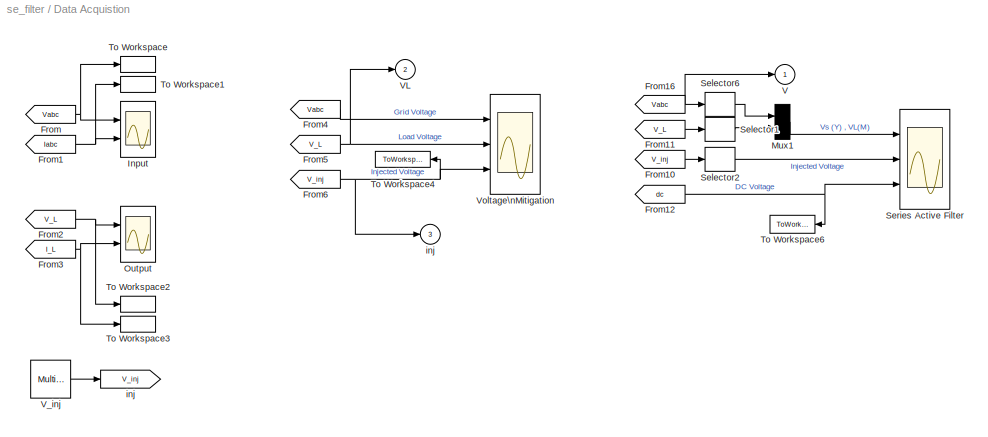
BLOCK [SubSystem] Data Acquistion
  FunctionWithSeparateData = off
  MaskDisplay = fprintf('scopes')
  MaskHideContents = off
  MaskIconFrame = on
  MaskIconOpaque = off
  MaskIconRotate = none
  MaskIconUnits = autoscale
  MaskPortRotate = default
  MinAlgLoopOccurrences = off
  Opaque = off
  Ports = [0, 3]
  PropExecContextOutsideSubsystem = off
  RTWSystemCode = Auto
  RequestExecContextInheritance = off
BLOCK [From] Data Acquistion/From
  GotoTag = Vabc
  TagVisibility = global
BLOCK [From] Data Acquistion/From1
  GotoTag = Iabc
  TagVisibility = global
BLOCK [From] Data Acquistion/From10
  GotoTag = V_inj
  TagVisibility = global
BLOCK [From] Data Acquistion/From11
  GotoTag = V_L
  TagVisibility = global
BLOCK [From] Data Acquistion/From12
  GotoTag = dc
BLOCK [From] Data Acquistion/From16
  GotoTag = Vabc
  TagVisibility = global
BLOCK [From] Data Acquistion/From2
  GotoTag = V_L
  TagVisibility = global
BLOCK [From] Data Acquistion/From3
  GotoTag = I_L
  TagVisibility = global
BLOCK [From] Data Acquistion/From4
  GotoTag = Vabc
  TagVisibility = global
BLOCK [From] Data Acquistion/From5
  GotoTag = V_L
  TagVisibility = global
BLOCK [From] Data Acquistion/From6
  GotoTag = V_inj
  TagVisibility = global
BLOCK [Scope] Data Acquistion/Input
  DataFormat = StructureWithTime
  Floating = off
  LimitDataPoints = off
  NumInputPorts = 2
  Ports = [2]
  SampleTime = 0
  SaveName = Grid_pi
  TimeRange = 0.1
  YMax = 400~15
  YMin = -400~-15
BLOCK [Mux] Data Acquistion/Mux1
  DisplayOption = signals
  Inputs = 2
  Ports = [2, 1]
BLOCK [Scope] Data Acquistion/Output
  DataFormat = StructureWithTime
  Floating = off
  LimitDataPoints = off
  NumInputPorts = 2
  Ports = [2]
  SampleTime = 0
  SaveName = Load_pi
  TimeRange = 0.1
  YMax = 400~10
  YMin = -400~-10
  ZoomMode = xonly
BLOCK [Selector] Data Acquistion/Selector1
  IndexOptions = Index vector (dialog)
  Indices = 1
  InputPortWidth = 3
  OutputSizes = 1
  Ports = [1, 1]
BLOCK [Selector] Data Acquistion/Selector2
  IndexOptions = Index vector (dialog)
  Indices = 1
  InputPortWidth = 3
  OutputSizes = 1
  Ports = [1, 1]
BLOCK [Selector] Data Acquistion/Selector6
  IndexOptions = Index vector (dialog)
  Indices = 1
  InputPortWidth = 3
  OutputSizes = 1
  Ports = [1, 1]
BLOCK [Scope] Data Acquistion/Series Active Filter
  DataFormat = StructureWithTime
  Floating = off
  LimitDataPoints = off
  NumInputPorts = 3
  Ports = [3]
  SampleTime = 0
  SaveName = se_pi
  TickLabels = on
  TimeRange = 2
  YMax = 350~175~1000
  YMin = -350~-175~600
  ZoomMode = yonly
BLOCK [ToWorkspace] Data Acquistion/To Workspace
  MaxDataPoints = inf
  SampleTime = Ts
  SaveFormat = Array
  VariableName = Vs_pi
BLOCK [ToWorkspace] Data Acquistion/To Workspace1
  MaxDataPoints = inf
  SampleTime = Ts
  SaveFormat = Array
  VariableName = Is_pi
BLOCK [ToWorkspace] Data Acquistion/To Workspace2
  MaxDataPoints = inf
  SampleTime = Ts
  SaveFormat = Array
  VariableName = VL_pi
BLOCK [ToWorkspace] Data Acquistion/To Workspace3
  MaxDataPoints = inf
  SampleTime = Ts
  SaveFormat = Array
  VariableName = IL_pi
BLOCK [ToWorkspace] Data Acquistion/To Workspace4
  MaxDataPoints = inf
  SampleTime = Ts
  SaveFormat = Array
  VariableName = V_inj_pi
BLOCK [ToWorkspace] Data Acquistion/To Workspace6
  MaxDataPoints = inf
  SampleTime = Ts
  SaveFormat = Array
  VariableName = Vdc_pi
BLOCK [Outport] Data Acquistion/V
  IconDisplay = Port number
  OutDataType = fixdt(1, 16)
  OutScaling = 2^0
BLOCK [Outport] Data Acquistion/VL
  IconDisplay = Port number
  OutDataType = fixdt(1, 16)
  OutScaling = 2^0
  Port = 2
BLOCK [Reference] Data Acquistion/V_inj  REF=powerlib/Measurements/Multimeter
  AxesSetting = [0,0.1,-100,100]
  Display = 0
  FunctionWithSeparateData = off
  Gain = [1 1 1]
  L = 3
  OutputType = Complex
  PSBOutputType = 1
  PSBequivalent = 0
  PhasorSimulation = off
  Ports = [0, 1, 0, 0, 0, 1]
  RTWMemSecDataConstants = Inherit from model
  RTWMemSecDataInternal = Inherit from model
  RTWMemSecDataParameters = Inherit from model
  RTWMemSecFuncExecute = Inherit from model
  RTWMemSecFuncInitTerm = Inherit from model
  SavedBlockNames = -11
  ShowPortLabels = FromPortIcon
  SourceBlock = powerlib/Measurements/Multimeter
  SourceType = MultimeterPSB
  SystemSampleTime = -1
  sel = [1 2 3]
  yselected = {'Ub: rc_a','Ub: rc_b','Ub: rc_c'};
BLOCK [Scope] Data Acquistion/Voltage\nMitigation
  DataFormat = StructureWithTime
  Floating = off
  LimitDataPoints = off
  NumInputPorts = 3
  Ports = [3]
  SampleTime = 0
  SaveName = voltage_pi
  SaveToWorkspace = on
  TimeRange = 0.2
  YMax = 500~500~200
  YMin = -500~-500~-200
  ZoomMode = xonly
BLOCK [Goto] Data Acquistion/inj
  GotoTag = V_inj
  TagVisibility = global
BLOCK [Outport] Data Acquistion/inj 
  IconDisplay = Port number
  OutDataType = fixdt(1, 16)
  OutScaling = 2^0
  Port = 3
BLOCK [Scope] Data \nAcquistion
  DataFormat = StructureWithTime
  Floating = off
  LimitDataPoints = off
  NumInputPorts = 3
  Ports = [3]
  SampleTime = 0
  SaveName = se_pi1
  TickLabels = on
  TimeRange = 2.5
  YMax = 500~500~200
  YMin = -500~-500~-200
  ZoomMode = xonly
BLOCK [From] From3
  GotoTag = V_L
  TagVisibility = global
BLOCK [Reference] Grid  REF=powerlib/Electrical\nSources/Three-Phase\nProgrammable\nVoltage Source
  Amplitudes = [1 0.5 1 1.5 1]
  DialogController = POWERSYS.PowerSysDialog
  FunctionWithSeparateData = off
  HarmonicA = [5 0.2 0 2]
  HarmonicB = [7 0.05 0 1]
  HarmonicGeneration = on
  Ports = [0, 0, 0, 0, 0, 1, 3]
  PositiveSequence = [380  0 50]
  RTWMemSecDataConstants = Inherit from model
  RTWMemSecDataInternal = Inherit from model
  RTWMemSecDataParameters = Inherit from model
  RTWMemSecFuncExecute = Inherit from model
  RTWMemSecFuncInitTerm = Inherit from model
  ShowPortLabels = FromPortIcon
  SourceBlock = powerlib/Electrical\nSources/Three-Phase\nProgrammable\nVoltage Source
  SourceType = Three-Phase Programmable Voltage Source
  SystemSampleTime = -1
  TimeValues = [0 0.5 0.7 1.5 1.7]
  Timing = [0.2  0.4]
  VariationEntity = Amplitude
  VariationFrequency = 2
  VariationMagnitude = 0.3
  VariationPhaseA = off
  VariationRate = 10
  VariationStep = 0.5
  VariationTiming = [1 2]
  VariationType = Table of time-amplitude pairs
BLOCK [Reference] Ground  REF=powerlib/Elements/Ground
  DialogController = POWERSYS.PowerSysDialog
  LConnTagsString = a
  LeftPortType = p1
  PhysicalDomain = powersysdomain
  Ports = [0, 0, 0, 0, 0, 1]
  RightPortType = p1
  SourceBlock = powerlib/Elements/Ground
  SourceType = Ground
  SubClassName = unknown
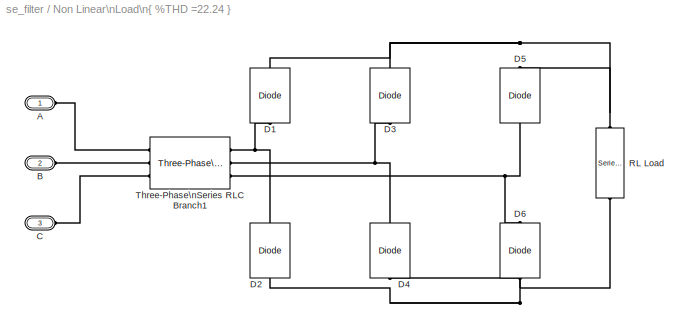
BLOCK [SubSystem] Non Linear\nLoad\n{ %THD =22.24 }
  FunctionWithSeparateData = off
  MaskDisplay = fprintf('Non Linear\\nLoad')
  MaskHideContents = off
  MaskIconFrame = on
  MaskIconOpaque = off
  MaskIconRotate = none
  MaskIconUnits = autoscale
  MaskPortRotate = default
  MinAlgLoopOccurrences = off
  Opaque = off
  Ports = [0, 0, 0, 0, 0, 3]
  PropExecContextOutsideSubsystem = off
  RTWSystemCode = Auto
  RequestExecContextInheritance = off
BLOCK [PMIOPort] Non Linear\nLoad\n{ %THD =22.24 }/A
  Port = 1
  Side = Left
BLOCK [PMIOPort] Non Linear\nLoad\n{ %THD =22.24 }/B
  Port = 2
  Side = Left
BLOCK [PMIOPort] Non Linear\nLoad\n{ %THD =22.24 }/C
  Port = 3
  Side = Left
BLOCK [Reference] Non Linear\nLoad\n{ %THD =22.24 }/D1  REF=powerlib/Power\nElectronics/Diode
  Cs = 250e-9
  DialogController = POWERSYS.PowerSysDialog
  FunctionWithSeparateData = off
  IC = 0
  Lon = 0
  Measurements = off
  Ports = [0, 0, 0, 0, 0, 1, 1]
  RTWMemSecDataConstants = Inherit from model
  RTWMemSecDataInternal = Inherit from model
  RTWMemSecDataParameters = Inherit from model
  RTWMemSecFuncExecute = Inherit from model
  RTWMemSecFuncInitTerm = Inherit from model
  Ron = 0.001
  Rs = 500
  ShowPortLabels = FromPortIcon
  SourceBlock = powerlib/Power\nElectronics/Diode
  SourceType = Diode
  SystemSampleTime = -1
  UseSnubber = off
  Vf = 0.8
BLOCK [Reference] Non Linear\nLoad\n{ %THD =22.24 }/D2  REF=powerlib/Power\nElectronics/Diode
  Cs = 250e-9
  DialogController = POWERSYS.PowerSysDialog
  FunctionWithSeparateData = off
  IC = 0
  Lon = 0
  Measurements = off
  Ports = [0, 0, 0, 0, 0, 1, 1]
  RTWMemSecDataConstants = Inherit from model
  RTWMemSecDataInternal = Inherit from model
  RTWMemSecDataParameters = Inherit from model
  RTWMemSecFuncExecute = Inherit from model
  RTWMemSecFuncInitTerm = Inherit from model
  Ron = 0.001
  Rs = 500
  ShowPortLabels = FromPortIcon
  SourceBlock = powerlib/Power\nElectronics/Diode
  SourceType = Diode
  SystemSampleTime = -1
  UseSnubber = off
  Vf = 0.8
BLOCK [Reference] Non Linear\nLoad\n{ %THD =22.24 }/D3  REF=powerlib/Power\nElectronics/Diode
  Cs = 250e-9
  DialogController = POWERSYS.PowerSysDialog
  FunctionWithSeparateData = off
  IC = 0
  Lon = 0
  Measurements = off
  Ports = [0, 0, 0, 0, 0, 1, 1]
  RTWMemSecDataConstants = Inherit from model
  RTWMemSecDataInternal = Inherit from model
  RTWMemSecDataParameters = Inherit from model
  RTWMemSecFuncExecute = Inherit from model
  RTWMemSecFuncInitTerm = Inherit from model
  Ron = 0.001
  Rs = 500
  ShowPortLabels = FromPortIcon
  SourceBlock = powerlib/Power\nElectronics/Diode
  SourceType = Diode
  SystemSampleTime = -1
  UseSnubber = off
  Vf = 0.8
BLOCK [Reference] Non Linear\nLoad\n{ %THD =22.24 }/D4  REF=powerlib/Power\nElectronics/Diode
  Cs = 250e-9
  DialogController = POWERSYS.PowerSysDialog
  FunctionWithSeparateData = off
  IC = 0
  Lon = 0
  Measurements = off
  Ports = [0, 0, 0, 0, 0, 1, 1]
  RTWMemSecDataConstants = Inherit from model
  RTWMemSecDataInternal = Inherit from model
  RTWMemSecDataParameters = Inherit from model
  RTWMemSecFuncExecute = Inherit from model
  RTWMemSecFuncInitTerm = Inherit from model
  Ron = 0.001
  Rs = 500
  ShowPortLabels = FromPortIcon
  SourceBlock = powerlib/Power\nElectronics/Diode
  SourceType = Diode
  SystemSampleTime = -1
  UseSnubber = off
  Vf = 0.8
BLOCK [Reference] Non Linear\nLoad\n{ %THD =22.24 }/D5  REF=powerlib/Power\nElectronics/Diode
  Cs = 250e-9
  DialogController = POWERSYS.PowerSysDialog
  FunctionWithSeparateData = off
  IC = 0
  Lon = 0
  Measurements = off
  Ports = [0, 0, 0, 0, 0, 1, 1]
  RTWMemSecDataConstants = Inherit from model
  RTWMemSecDataInternal = Inherit from model
  RTWMemSecDataParameters = Inherit from model
  RTWMemSecFuncExecute = Inherit from model
  RTWMemSecFuncInitTerm = Inherit from model
  Ron = 0.001
  Rs = 500
  ShowPortLabels = FromPortIcon
  SourceBlock = powerlib/Power\nElectronics/Diode
  SourceType = Diode
  SystemSampleTime = -1
  UseSnubber = off
  Vf = 0.8
BLOCK [Reference] Non Linear\nLoad\n{ %THD =22.24 }/D6  REF=powerlib/Power\nElectronics/Diode
  Cs = 250e-9
  DialogController = POWERSYS.PowerSysDialog
  FunctionWithSeparateData = off
  IC = 0
  Lon = 0
  Measurements = off
  Ports = [0, 0, 0, 0, 0, 1, 1]
  RTWMemSecDataConstants = Inherit from model
  RTWMemSecDataInternal = Inherit from model
  RTWMemSecDataParameters = Inherit from model
  RTWMemSecFuncExecute = Inherit from model
  RTWMemSecFuncInitTerm = Inherit from model
  Ron = 0.001
  Rs = 500
  ShowPortLabels = FromPortIcon
  SourceBlock = powerlib/Power\nElectronics/Diode
  SourceType = Diode
  SystemSampleTime = -1
  UseSnubber = off
  Vf = 0.8
BLOCK [Reference] Non Linear\nLoad\n{ %THD =22.24 }/RL Load  REF=powerlib/Elements/Series RLC Branch
  BranchType = RL
  Capacitance = 1e-6
  DialogController = POWERSYS.PowerSysDialog
  Inductance = 0.15e-3
  InitialCurrent = 0
  InitialVoltage = 0
  LConnTagsString = __new0
  LeftPortType = p1
  Measurements = None
  PhysicalDomain = powersysdomain
  Ports = [0, 0, 0, 0, 0, 1, 1]
  RConnTagsString = __new0
  Resistance = 60
  RightPortType = p1
  SetiL0 = off
  Setx0 = off
  SourceBlock = powerlib/Elements/Series RLC Branch
  SourceType = Series RLC Branch
  SubClassName = unknown
BLOCK [Reference] Non Linear\nLoad\n{ %THD =22.24 }/Three-Phase\nSeries RLC Branch1  REF=powerlib/Elements/Three-Phase\nSeries RLC Branch
  AttributesFormatString = \\n
  BranchType = RL
  Capacitance = 1e-6
  DialogController = POWERSYS.PowerSysDialog
  Inductance = 15e-3
  LConnTagsString = A|B|C
  LeftPortType = p1
  Measurements = None
  PhysicalDomain = powersysdomain
  Ports = [0, 0, 0, 0, 0, 3, 3]
  RConnTagsString = A|B|C
  Resistance = 0.4
  RightPortType = p1
  SourceBlock = powerlib/Elements/Three-Phase\nSeries RLC Branch
  SourceType = Three-Phase Series RLC Branch
  SubClassName = unknown
BLOCK [Reference] R  REF=powerlib/Elements/Series RLC Branch
  BranchType = R
  Capacitance = 1e-6
  DialogController = POWERSYS.PowerSysDialog
  Inductance = 1e-3
  InitialCurrent = 0
  InitialVoltage = 0
  LConnTagsString = __new0
  LeftPortType = p1
  Measurements = None
  PhysicalDomain = powersysdomain
  Ports = [0, 0, 0, 0, 0, 1, 1]
  RConnTagsString = __new0
  Resistance = 0.1
  RightPortType = p1
  SetiL0 = off
  Setx0 = off
  SourceBlock = powerlib/Elements/Series RLC Branch
  SourceType = Series RLC Branch
  SubClassName = unknown
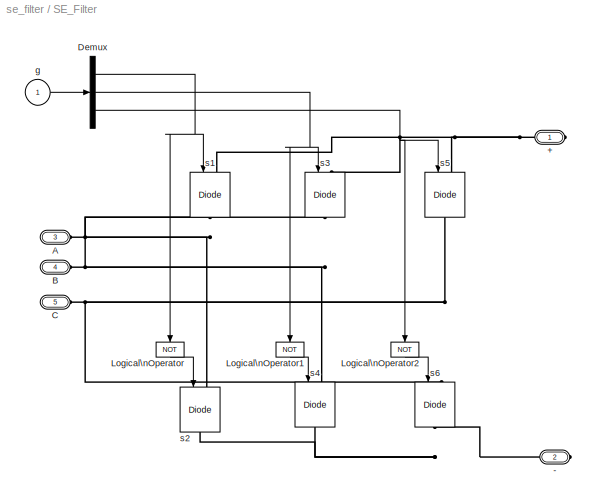
BLOCK [SubSystem] SE_Filter
  FunctionWithSeparateData = off
  MaskDisplay = fprintf('series\\nfilter')
  MaskHideContents = off
  MaskIconFrame = on
  MaskIconOpaque = off
  MaskIconRotate = none
  MaskIconUnits = autoscale
  MaskPortRotate = default
  MinAlgLoopOccurrences = off
  Opaque = off
  Ports = [1, 0, 0, 0, 0, 3, 2]
  PropExecContextOutsideSubsystem = off
  RTWSystemCode = Auto
  RequestExecContextInheritance = off
BLOCK [PMIOPort] SE_Filter/+
  Port = 1
  Side = Right
BLOCK [PMIOPort] SE_Filter/-
  Port = 2
  Side = Right
BLOCK [PMIOPort] SE_Filter/A
  Port = 3
  Side = Left
BLOCK [PMIOPort] SE_Filter/B
  Port = 4
  Side = Left
BLOCK [PMIOPort] SE_Filter/C
  Port = 5
  Side = Left
BLOCK [Demux] SE_Filter/Demux
  Outputs = 3
  Ports = [1, 3]
BLOCK [Logic] SE_Filter/Logical\nOperator
  AllPortsSameDT = off
  LogicDataType = fixdt(0, 8)
  Operator = NOT
  OutDataTypeMode = boolean
  OutDataTypeStr = boolean
  Ports = [1, 1]
BLOCK [Logic] SE_Filter/Logical\nOperator1
  AllPortsSameDT = off
  LogicDataType = fixdt(0, 8)
  Operator = NOT
  OutDataTypeMode = boolean
  OutDataTypeStr = boolean
  Ports = [1, 1]
BLOCK [Logic] SE_Filter/Logical\nOperator2
  AllPortsSameDT = off
  LogicDataType = fixdt(0, 8)
  Operator = NOT
  OutDataTypeMode = boolean
  OutDataTypeStr = boolean
  Ports = [1, 1]
BLOCK [Inport] SE_Filter/g
  IconDisplay = Port number
BLOCK [Reference] SE_Filter/s1  REF=powerlib/Power\nElectronics/IGBT//Diode
  Cs = inf
  DialogController = POWERSYS.PowerSysDialog
  FunctionWithSeparateData = off
  Measurements = off
  Ports = [1, 0, 0, 0, 0, 1, 1]
  RTWMemSecDataConstants = Inherit from model
  RTWMemSecDataInternal = Inherit from model
  RTWMemSecDataParameters = Inherit from model
  RTWMemSecFuncExecute = Inherit from model
  RTWMemSecFuncInitTerm = Inherit from model
  Ron = 1e-3
  Rs = 1e5
  ShowPortLabels = FromPortIcon
  SourceBlock = powerlib/Power\nElectronics/IGBT//Diode
  SourceType = IGBT/Diode
  SystemSampleTime = -1
BLOCK [Reference] SE_Filter/s2  REF=powerlib/Power\nElectronics/IGBT//Diode
  Cs = inf
  DialogController = POWERSYS.PowerSysDialog
  FunctionWithSeparateData = off
  Measurements = off
  Ports = [1, 0, 0, 0, 0, 1, 1]
  RTWMemSecDataConstants = Inherit from model
  RTWMemSecDataInternal = Inherit from model
  RTWMemSecDataParameters = Inherit from model
  RTWMemSecFuncExecute = Inherit from model
  RTWMemSecFuncInitTerm = Inherit from model
  Ron = 1e-3
  Rs = 1e5
  ShowPortLabels = FromPortIcon
  SourceBlock = powerlib/Power\nElectronics/IGBT//Diode
  SourceType = IGBT/Diode
  SystemSampleTime = -1
BLOCK [Reference] SE_Filter/s3  REF=powerlib/Power\nElectronics/IGBT//Diode
  Cs = inf
  DialogController = POWERSYS.PowerSysDialog
  FunctionWithSeparateData = off
  Measurements = off
  Ports = [1, 0, 0, 0, 0, 1, 1]
  RTWMemSecDataConstants = Inherit from model
  RTWMemSecDataInternal = Inherit from model
  RTWMemSecDataParameters = Inherit from model
  RTWMemSecFuncExecute = Inherit from model
  RTWMemSecFuncInitTerm = Inherit from model
  Ron = 1e-3
  Rs = 1e5
  ShowPortLabels = FromPortIcon
  SourceBlock = powerlib/Power\nElectronics/IGBT//Diode
  SourceType = IGBT/Diode
  SystemSampleTime = -1
BLOCK [Reference] SE_Filter/s4  REF=powerlib/Power\nElectronics/IGBT//Diode
  Cs = inf
  DialogController = POWERSYS.PowerSysDialog
  FunctionWithSeparateData = off
  Measurements = off
  Ports = [1, 0, 0, 0, 0, 1, 1]
  RTWMemSecDataConstants = Inherit from model
  RTWMemSecDataInternal = Inherit from model
  RTWMemSecDataParameters = Inherit from model
  RTWMemSecFuncExecute = Inherit from model
  RTWMemSecFuncInitTerm = Inherit from model
  Ron = 1e-3
  Rs = 1e5
  ShowPortLabels = FromPortIcon
  SourceBlock = powerlib/Power\nElectronics/IGBT//Diode
  SourceType = IGBT/Diode
  SystemSampleTime = -1
BLOCK [Reference] SE_Filter/s5  REF=powerlib/Power\nElectronics/IGBT//Diode
  Cs = inf
  DialogController = POWERSYS.PowerSysDialog
  FunctionWithSeparateData = off
  Measurements = off
  Ports = [1, 0, 0, 0, 0, 1, 1]
  RTWMemSecDataConstants = Inherit from model
  RTWMemSecDataInternal = Inherit from model
  RTWMemSecDataParameters = Inherit from model
  RTWMemSecFuncExecute = Inherit from model
  RTWMemSecFuncInitTerm = Inherit from model
  Ron = 1e-3
  Rs = 1e5
  ShowPortLabels = FromPortIcon
  SourceBlock = powerlib/Power\nElectronics/IGBT//Diode
  SourceType = IGBT/Diode
  SystemSampleTime = -1
BLOCK [Reference] SE_Filter/s6  REF=powerlib/Power\nElectronics/IGBT//Diode
  Cs = inf
  DialogController = POWERSYS.PowerSysDialog
  FunctionWithSeparateData = off
  Measurements = off
  Ports = [1, 0, 0, 0, 0, 1, 1]
  RTWMemSecDataConstants = Inherit from model
  RTWMemSecDataInternal = Inherit from model
  RTWMemSecDataParameters = Inherit from model
  RTWMemSecFuncExecute = Inherit from model
  RTWMemSecFuncInitTerm = Inherit from model
  Ron = 1e-3
  Rs = 1e5
  ShowPortLabels = FromPortIcon
  SourceBlock = powerlib/Power\nElectronics/IGBT//Diode
  SourceType = IGBT/Diode
  SystemSampleTime = -1
BLOCK [Reference] Tc_a  REF=powerlib/Elements/Saturable Transformer
  BreakLoop = off
  CoreLoss = [117 0]
  DataFile = 'hysteresis.mat'
  DataType = off
  DialogController = POWERSYS.PowerSysDialog
  FunctionWithSeparateData = off
  Hysteresis = off
  InitialFlux = 0
  Measurements = None
  MoreParameters = off
  NominalPower = [4000 50]
  Ports = [0, 0, 0, 0, 0, 2, 2]
  RTWMemSecDataConstants = Inherit from model
  RTWMemSecDataInternal = Inherit from model
  RTWMemSecDataParameters = Inherit from model
  RTWMemSecFuncExecute = Inherit from model
  RTWMemSecFuncInitTerm = Inherit from model
  Saturation = [ 0 0 ;1.016 9.043]*1e-3
  ShowPortLabels = FromPortIcon
  SourceBlock = powerlib/Elements/Saturable Transformer
  SourceType = Saturable Transformer
  SystemSampleTime = -1
  ThreeWindings = off
  TransfoNumber = 1
  UNITS = pu
  Winding1 = [380  0.02  0.02 ]
  Winding2 = [380  0.02  0.02]
  Winding3 = [ 315e3  0.002  0.08 ]
BLOCK [Reference] Tc_b  REF=powerlib/Elements/Saturable Transformer
  BreakLoop = off
  CoreLoss = [117 0]
  DataFile = 'hysteresis.mat'
  DataType = off
  DialogController = POWERSYS.PowerSysDialog
  FunctionWithSeparateData = off
  Hysteresis = off
  InitialFlux = 0
  Measurements = None
  MoreParameters = off
  NominalPower = [4000 50]
  Ports = [0, 0, 0, 0, 0, 2, 2]
  RTWMemSecDataConstants = Inherit from model
  RTWMemSecDataInternal = Inherit from model
  RTWMemSecDataParameters = Inherit from model
  RTWMemSecFuncExecute = Inherit from model
  RTWMemSecFuncInitTerm = Inherit from model
  Saturation = [ 0 0 ;1.016 9.043]*1e-3
  ShowPortLabels = FromPortIcon
  SourceBlock = powerlib/Elements/Saturable Transformer
  SourceType = Saturable Transformer
  SystemSampleTime = -1
  ThreeWindings = off
  TransfoNumber = 1
  UNITS = pu
  Winding1 = [380  0.02  0.02 ]
  Winding2 = [380  0.02  0.02]
  Winding3 = [ 315e3  0.002  0.08 ]
BLOCK [Reference] Tc_c  REF=powerlib/Elements/Saturable Transformer
  BreakLoop = off
  CoreLoss = [117 0]
  DataFile = 'hysteresis.mat'
  DataType = off
  DialogController = POWERSYS.PowerSysDialog
  FunctionWithSeparateData = off
  Hysteresis = off
  InitialFlux = 0
  Measurements = None
  MoreParameters = off
  NominalPower = [4000 50]
  Ports = [0, 0, 0, 0, 0, 2, 2]
  RTWMemSecDataConstants = Inherit from model
  RTWMemSecDataInternal = Inherit from model
  RTWMemSecDataParameters = Inherit from model
  RTWMemSecFuncExecute = Inherit from model
  RTWMemSecFuncInitTerm = Inherit from model
  Saturation = [ 0 0 ;1.016 9.043]*1e-3
  ShowPortLabels = FromPortIcon
  SourceBlock = powerlib/Elements/Saturable Transformer
  SourceType = Saturable Transformer
  SystemSampleTime = -1
  ThreeWindings = off
  TransfoNumber = 1
  UNITS = pu
  Winding1 = [380  0.02  0.02 ]
  Winding2 = [380  0.02  0.02]
  Winding3 = [ 315e3  0.002  0.08 ]
BLOCK [Reference] Three-Phase\nV-I Measurement  REF=powerlib/Measurements/Three-Phase\nV-I Measurement
  CurrentMeasurement = yes
  DialogController = POWERSYS.PowerSysDialog
  FunctionWithSeparateData = off
  Ipu = off
  LabelI = Iabc
  LabelV = Vabc
  OutputType = Complex
  PSBequivalent = 0
  Pbase = 100e6
  PhasorSimulation = off
  Ports = [0, 0, 0, 0, 0, 3, 3]
  RTWMemSecDataConstants = Inherit from model
  RTWMemSecDataInternal = Inherit from model
  RTWMemSecDataParameters = Inherit from model
  RTWMemSecFuncExecute = Inherit from model
  RTWMemSecFuncInitTerm = Inherit from model
  SetLabelI = on
  SetLabelV = on
  ShowPortLabels = FromPortIcon
  SourceBlock = powerlib/Measurements/Three-Phase\nV-I Measurement
  SourceType = Three-Phase VI Measurement
  SystemSampleTime = -1
  Vbase = 500e3
  VoltageMeasurement = phase-to-ground
  Vpu = off
BLOCK [Reference] Three-Phase\nV-I Measurement1  REF=powerlib/Measurements/Three-Phase\nV-I Measurement
  CurrentMeasurement = yes
  DialogController = POWERSYS.PowerSysDialog
  FunctionWithSeparateData = off
  Ipu = off
  LabelI = I_L
  LabelV = V_L
  OutputType = Complex
  PSBequivalent = 0
  Pbase = 100e6
  PhasorSimulation = off
  Ports = [0, 0, 0, 0, 0, 3, 3]
  RTWMemSecDataConstants = Inherit from model
  RTWMemSecDataInternal = Inherit from model
  RTWMemSecDataParameters = Inherit from model
  RTWMemSecFuncExecute = Inherit from model
  RTWMemSecFuncInitTerm = Inherit from model
  SetLabelI = on
  SetLabelV = on
  ShowPortLabels = FromPortIcon
  SourceBlock = powerlib/Measurements/Three-Phase\nV-I Measurement
  SourceType = Three-Phase VI Measurement
  SystemSampleTime = -1
  Vbase = 500e3
  VoltageMeasurement = phase-to-ground
  Vpu = off
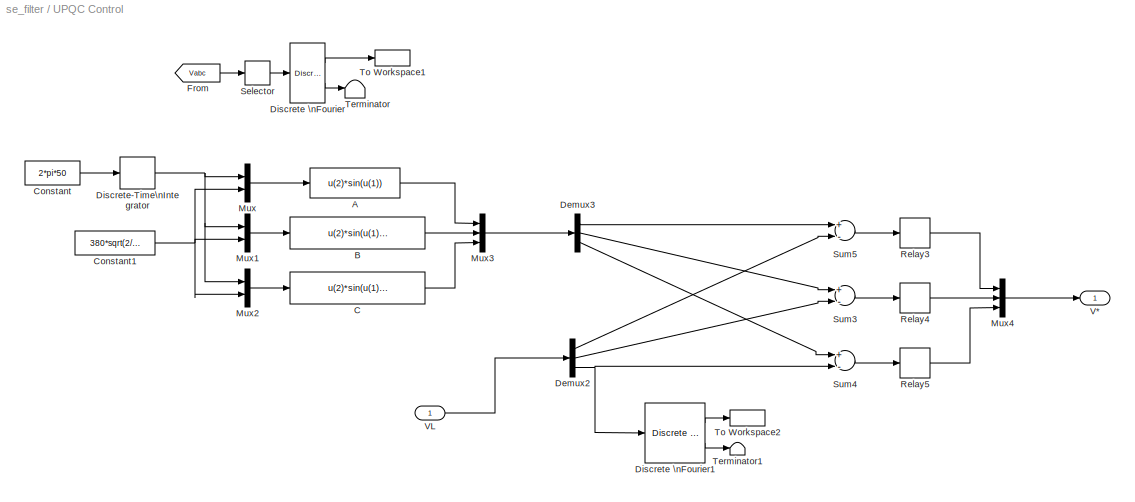
BLOCK [SubSystem] UPQC Control
  FunctionWithSeparateData = off
  MaskDisplay = fprintf('Series\\nFilter')
  MaskHideContents = off
  MaskIconFrame = on
  MaskIconOpaque = off
  MaskIconRotate = none
  MaskIconUnits = autoscale
  MaskPortRotate = default
  MinAlgLoopOccurrences = off
  Opaque = off
  Ports = [1, 1]
  PropExecContextOutsideSubsystem = off
  RTWSystemCode = Auto
  RequestExecContextInheritance = off
BLOCK [Fcn] UPQC Control/A
  Expr = u(2)*sin(u(1))
BLOCK [Fcn] UPQC Control/B
  Expr = u(2)*sin(u(1)-2*pi/3)
BLOCK [Fcn] UPQC Control/C
  Expr = u(2)*sin(u(1)+2*pi/3)
BLOCK [Constant] UPQC Control/Constant
  OutDataType = fixdt(1, 16)
  OutScaling = 2^0
  Value = 2*pi*50
BLOCK [Constant] UPQC Control/Constant1
  OutDataType = fixdt(1, 16)
  OutScaling = 2^0
  Value = 380*sqrt(2/3)
BLOCK [Demux] UPQC Control/Demux2
  DisplayOption = bar
  Outputs = 3
  Ports = [1, 3]
BLOCK [Demux] UPQC Control/Demux3
  DisplayOption = bar
  Outputs = 3
  Ports = [1, 3]
BLOCK [Reference] UPQC Control/Discrete \nFourier  REF=powerlib_extras/Discrete\nMeasurements/Discrete \nFourier
  DialogController = POWERSYS.PowerSysDialog
  Freq = 50
  FunctionWithSeparateData = off
  Par_Init = [0 0]
  Ports = [1, 2]
  RTWMemSecDataConstants = Inherit from model
  RTWMemSecDataInternal = Inherit from model
  RTWMemSecDataParameters = Inherit from model
  RTWMemSecFuncExecute = Inherit from model
  RTWMemSecFuncInitTerm = Inherit from model
  ShowPortLabels = FromPortIcon
  SourceBlock = powerlib_extras/Discrete\nMeasurements/Discrete \nFourier
  SourceType = Discrete Fourier
  SystemSampleTime = -1
  Ts = Ts
  n = 1
BLOCK [Reference] UPQC Control/Discrete \nFourier1  REF=powerlib_extras/Discrete\nMeasurements/Discrete \nFourier
  DialogController = POWERSYS.PowerSysDialog
  Freq = 50
  FunctionWithSeparateData = off
  Par_Init = [0 0]
  Ports = [1, 2]
  RTWMemSecDataConstants = Inherit from model
  RTWMemSecDataInternal = Inherit from model
  RTWMemSecDataParameters = Inherit from model
  RTWMemSecFuncExecute = Inherit from model
  RTWMemSecFuncInitTerm = Inherit from model
  ShowPortLabels = FromPortIcon
  SourceBlock = powerlib_extras/Discrete\nMeasurements/Discrete \nFourier
  SourceType = Discrete Fourier
  SystemSampleTime = -1
  Ts = Ts
  n = 1
BLOCK [DiscreteIntegrator] UPQC Control/Discrete-Time\nIntegrator
  ExternalReset = none
  ICPrevOutput = DiscIntNeverNeededParam
  ICPrevScaledInput = DiscIntNeverNeededParam
  InitialConditionSource = internal
  IntegratorMethod = Integration: Forward Euler
  OutDataType = fixdt(1, 16)
  OutScaling = 2^0
  Ports = [1, 1]
  SampleTime = Ts
BLOCK [From] UPQC Control/From
  GotoTag = Vabc
  TagVisibility = global
BLOCK [Mux] UPQC Control/Mux
  DisplayOption = bar
  Inputs = 2
  Ports = [2, 1]
BLOCK [Mux] UPQC Control/Mux1
  DisplayOption = bar
  Inputs = 2
  Ports = [2, 1]
BLOCK [Mux] UPQC Control/Mux2
  DisplayOption = bar
  Inputs = 2
  Ports = [2, 1]
BLOCK [Mux] UPQC Control/Mux3
  DisplayOption = bar
  Inputs = 3
  Ports = [3, 1]
BLOCK [Mux] UPQC Control/Mux4
  DisplayOption = bar
  Inputs = 3
  Ports = [3, 1]
BLOCK [Relay] UPQC Control/Relay3
  OffSwitchValue = -1
  OnSwitchValue = 1
  OutDataType = fixdt(1, 16)
  OutScaling = 2^0
BLOCK [Relay] UPQC Control/Relay4
  OffSwitchValue = -1
  OnSwitchValue = 1
  OutDataType = fixdt(1, 16)
  OutScaling = 2^0
BLOCK [Relay] UPQC Control/Relay5
  OffSwitchValue = -1
  OnSwitchValue = 1
  OutDataType = fixdt(1, 16)
  OutScaling = 2^0
BLOCK [Selector] UPQC Control/Selector
  IndexOptions = Index vector (dialog)
  Indices = 1
  InputPortWidth = 3
  OutputSizes = 1
  Ports = [1, 1]
BLOCK [Sum] UPQC Control/Sum3
  InputSameDT = off
  Inputs = +-
  OutDataType = fixdt(1, 16)
  OutDataTypeMode = Inherit via internal rule
  OutDataTypeStr = Inherit: Inherit via internal rule
  OutScaling = 2^0
  Ports = [2, 1]
  SaturateOnIntegerOverflow = off
BLOCK [Sum] UPQC Control/Sum4
  InputSameDT = off
  Inputs = +-
  OutDataType = fixdt(1, 16)
  OutDataTypeMode = Inherit via internal rule
  OutDataTypeStr = Inherit: Inherit via internal rule
  OutScaling = 2^0
  Ports = [2, 1]
  SaturateOnIntegerOverflow = off
BLOCK [Sum] UPQC Control/Sum5
  InputSameDT = off
  Inputs = +-
  OutDataType = fixdt(1, 16)
  OutDataTypeMode = Inherit via internal rule
  OutDataTypeStr = Inherit: Inherit via internal rule
  OutScaling = 2^0
  Ports = [2, 1]
  SaturateOnIntegerOverflow = off
BLOCK [Terminator] UPQC Control/Terminator
BLOCK [Terminator] UPQC Control/Terminator1
BLOCK [ToWorkspace] UPQC Control/To Workspace1
  MaxDataPoints = inf
  SampleTime = Ts
  SaveFormat = Array
  VariableName = mag
BLOCK [ToWorkspace] UPQC Control/To Workspace2
  MaxDataPoints = inf
  SampleTime = Ts
  SaveFormat = Array
  VariableName = mag_L
BLOCK [Outport] UPQC Control/V*
  IconDisplay = Port number
  OutDataType = fixdt(1, 16)
  OutScaling = 2^0
BLOCK [Inport] UPQC Control/VL
  IconDisplay = Port number
BLOCK [Reference] powergui  REF=powerlib/powergui
  DisableRonSwitches = off
  DisableSnubberDevices = off
  DisableVfSwitches = off
  DisplayEquations = off
  DisplayStyle = 1
  EnableUseOfTLC = off
  Frange = [0:2:500]
  FreqAxis = on
  FunctionMessages = off
  FunctionWithSeparateData = off
  HookPort = off
  Interpol = off
  MaxFrequency = 1000
  Ports = []
  Priority = 1
  RTWMemSecDataConstants = Inherit from model
  RTWMemSecDataInternal = Inherit from model
  RTWMemSecDataParameters = Inherit from model
  RTWMemSecFuncExecute = Inherit from model
  RTWMemSecFuncInitTerm = Inherit from model
  RestoreLinks = warning
  RmsSteady = 1
  SPID = off
  SampleTime = Ts
  ShowGrid = off
  ShowPortLabels = FromPortIcon
  SourceBlock = powerlib/powergui
  SourceType = PSB option menu block
  StartTime = 1.5
  SwTol = 0
  SystemSampleTime = -1
  Ts = 0
  UserData = DataTag0
  UserDataPersistent = on
  Xlog = on
  Ylog = off
  ZoomFFT = off
  cycles = 10
  display = off
  echomessages = off
  frequency = 60
  frequencyindice = 50
  frequencyindicesteady = 1
  fundamental = 50
  methode = off
  save = off
  structure = voltage_pi
  variable = ZData
  x0status = blocks
BLOCK [Reference] rc_a  REF=powerlib/Elements/Series RLC Branch
  BranchType = RC
  Capacitance = 100e-6
  DialogController = POWERSYS.PowerSysDialog
  Inductance = 1e-3
  InitialCurrent = 0
  InitialVoltage = 0
  LConnTagsString = __new0
  LeftPortType = p1
  Measurements = Branch voltage
  PhysicalDomain = powersysdomain
  Ports = [0, 0, 0, 0, 0, 1, 1]
  RConnTagsString = __new0
  Resistance = 1
  RightPortType = p1
  SetiL0 = off
  Setx0 = off
  SourceBlock = powerlib/Elements/Series RLC Branch
  SourceType = Series RLC Branch
  SubClassName = unknown
BLOCK [Reference] rc_b  REF=powerlib/Elements/Series RLC Branch
  BranchType = RC
  Capacitance = 100e-6
  DialogController = POWERSYS.PowerSysDialog
  Inductance = 1e-3
  InitialCurrent = 0
  InitialVoltage = 0
  LConnTagsString = __new0
  LeftPortType = p1
  Measurements = Branch voltage
  PhysicalDomain = powersysdomain
  Ports = [0, 0, 0, 0, 0, 1, 1]
  RConnTagsString = __new0
  Resistance = 1
  RightPortType = p1
  SetiL0 = off
  Setx0 = off
  SourceBlock = powerlib/Elements/Series RLC Branch
  SourceType = Series RLC Branch
  SubClassName = unknown
BLOCK [Reference] rc_c  REF=powerlib/Elements/Series RLC Branch
  BranchType = RC
  Capacitance = 100e-6
  DialogController = POWERSYS.PowerSysDialog
  Inductance = 1e-3
  InitialCurrent = 0
  InitialVoltage = 0
  LConnTagsString = __new0
  LeftPortType = p1
  Measurements = Branch voltage
  PhysicalDomain = powersysdomain
  Ports = [0, 0, 0, 0, 0, 1, 1]
  RConnTagsString = __new0
  Resistance = 1
  RightPortType = p1
  SetiL0 = off
  Setx0 = off
  SourceBlock = powerlib/Elements/Series RLC Branch
  SourceType = Series RLC Branch
  SubClassName = unknown
ANNOTATION (root): By\nSrikanth dakoju\nemail: <email>
ANNOTATION (root): Series Active Filter or dynamic Voltage restorer
LINE Data Acquistion/From10:1 -> Data Acquistion/Selector2:1
LINE Data Acquistion/From11:1 -> Data Acquistion/Selector1:1
NET Data Acquistion/From12:1 -> Data Acquistion/Series Active Filter:3, Data Acquistion/To Workspace6:1
NET Data Acquistion/From16:1 -> Data Acquistion/Selector6:1, Data Acquistion/V:1
NET Data Acquistion/From1:1 -> Data Acquistion/Input:2, Data Acquistion/To Workspace1:1
NET Data Acquistion/From2:1 -> Data Acquistion/Output:1, Data Acquistion/To Workspace2:1
NET Data Acquistion/From3:1 -> Data Acquistion/Output:2, Data Acquistion/To Workspace3:1
LINE Data Acquistion/From4:1 -> Data Acquistion/Voltage\nMitigation:1
NET Data Acquistion/From5:1 -> Data Acquistion/VL:1, Data Acquistion/Voltage\nMitigation:2
NET Data Acquistion/From6:1 -> Data Acquistion/To Workspace4:1, Data Acquistion/Voltage\nMitigation:3, Data Acquistion/inj :1
NET Data Acquistion/From:1 -> Data Acquistion/Input:1, Data Acquistion/To Workspace:1
LINE Data Acquistion/Mux1:1 -> Data Acquistion/Series Active Filter:1
LINE Data Acquistion/Selector1:1 -> Data Acquistion/Mux1:2
LINE Data Acquistion/Selector2:1 -> Data Acquistion/Series Active Filter:2
LINE Data Acquistion/Selector6:1 -> Data Acquistion/Mux1:1
LINE Data Acquistion/V_inj:1 -> Data Acquistion/inj:1
LINE Data Acquistion:1 -> Data \nAcquistion:1
LINE Data Acquistion:2 -> Data \nAcquistion:2
LINE Data Acquistion:3 -> Data \nAcquistion:3
LINE From3:1 -> UPQC Control:1
NET SE_Filter/Demux:1 -> SE_Filter/Logical\nOperator:1, SE_Filter/s1:1
NET SE_Filter/Demux:2 -> SE_Filter/Logical\nOperator1:1, SE_Filter/s3:1
NET SE_Filter/Demux:3 -> SE_Filter/Logical\nOperator2:1, SE_Filter/s5:1
LINE SE_Filter/Logical\nOperator1:1 -> SE_Filter/s4:1
LINE SE_Filter/Logical\nOperator2:1 -> SE_Filter/s6:1
LINE SE_Filter/Logical\nOperator:1 -> SE_Filter/s2:1
LINE SE_Filter/g:1 -> SE_Filter/Demux:1
LINE UPQC Control/A:1 -> UPQC Control/Mux3:1
LINE UPQC Control/B:1 -> UPQC Control/Mux3:2
LINE UPQC Control/C:1 -> UPQC Control/Mux3:3
NET UPQC Control/Constant1:1 -> UPQC Control/Mux1:2, UPQC Control/Mux2:2, UPQC Control/Mux:2
LINE UPQC Control/Constant:1 -> UPQC Control/Discrete-Time\nIntegrator:1
LINE UPQC Control/Demux2:1 -> UPQC Control/Sum5:2
LINE UPQC Control/Demux2:2 -> UPQC Control/Sum3:2
NET UPQC Control/Demux2:3 -> UPQC Control/Discrete \nFourier1:1, UPQC Control/Sum4:2
LINE UPQC Control/Demux3:1 -> UPQC Control/Sum5:1
LINE UPQC Control/Demux3:2 -> UPQC Control/Sum3:1
LINE UPQC Control/Demux3:3 -> UPQC Control/Sum4:1
LINE UPQC Control/Discrete \nFourier1:1 -> UPQC Control/To Workspace2:1
LINE UPQC Control/Discrete \nFourier1:2 -> UPQC Control/Terminator1:1
LINE UPQC Control/Discrete \nFourier:1 -> UPQC Control/To Workspace1:1
LINE UPQC Control/Discrete \nFourier:2 -> UPQC Control/Terminator:1
NET UPQC Control/Discrete-Time\nIntegrator:1 -> UPQC Control/Mux1:1, UPQC Control/Mux2:1, UPQC Control/Mux:1
LINE UPQC Control/From:1 -> UPQC Control/Selector:1
LINE UPQC Control/Mux1:1 -> UPQC Control/B:1
LINE UPQC Control/Mux2:1 -> UPQC Control/C:1
LINE UPQC Control/Mux3:1 -> UPQC Control/Demux3:1
LINE UPQC Control/Mux4:1 -> UPQC Control/V*:1
LINE UPQC Control/Mux:1 -> UPQC Control/A:1
LINE UPQC Control/Relay3:1 -> UPQC Control/Mux4:1
LINE UPQC Control/Relay4:1 -> UPQC Control/Mux4:2
LINE UPQC Control/Relay5:1 -> UPQC Control/Mux4:3
LINE UPQC Control/Selector:1 -> UPQC Control/Discrete \nFourier:1
LINE UPQC Control/Sum3:1 -> UPQC Control/Relay4:1
LINE UPQC Control/Sum4:1 -> UPQC Control/Relay5:1
LINE UPQC Control/Sum5:1 -> UPQC Control/Relay3:1
LINE UPQC Control/VL:1 -> UPQC Control/Demux2:1
LINE UPQC Control:1 -> SE_Filter:1
PLINE DC:LConn1 -- SE_Filter:RConn2
PLINE DC:RConn1 -- R:RConn1
PLINE Grid:LConn1 -- Ground:LConn1
PLINE Grid:RConn1 -- Three-Phase\nV-I Measurement:LConn1
PLINE Grid:RConn2 -- Three-Phase\nV-I Measurement:LConn2
PLINE Grid:RConn3 -- Three-Phase\nV-I Measurement:LConn3
PLINE Non Linear\nLoad\n{ %THD =22.24 }/A:RConn1 -- Non Linear\nLoad\n{ %THD =22.24 }/Three-Phase\nSeries RLC Branch1:LConn1
PLINE Non Linear\nLoad\n{ %THD =22.24 }/B:RConn1 -- Non Linear\nLoad\n{ %THD =22.24 }/Three-Phase\nSeries RLC Branch1:LConn2
PLINE Non Linear\nLoad\n{ %THD =22.24 }/C:RConn1 -- Non Linear\nLoad\n{ %THD =22.24 }/Three-Phase\nSeries RLC Branch1:LConn3
PNET net1: Non Linear\nLoad\n{ %THD =22.24 }/D1:LConn1 -- Non Linear\nLoad\n{ %THD =22.24 }/D2:RConn1 -- Non Linear\nLoad\n{ %THD =22.24 }/Three-Phase\nSeries RLC Branch1:RConn1
PNET net2: Non Linear\nLoad\n{ %THD =22.24 }/D1:RConn1 -- Non Linear\nLoad\n{ %THD =22.24 }/D3:RConn1 -- Non Linear\nLoad\n{ %THD =22.24 }/D5:RConn1 -- Non Linear\nLoad\n{ %THD =22.24 }/RL Load:LConn1
PNET net3: Non Linear\nLoad\n{ %THD =22.24 }/D2:LConn1 -- Non Linear\nLoad\n{ %THD =22.24 }/D4:LConn1 -- Non Linear\nLoad\n{ %THD =22.24 }/D6:LConn1 -- Non Linear\nLoad\n{ %THD =22.24 }/RL Load:RConn1
PNET net4: Non Linear\nLoad\n{ %THD =22.24 }/D3:LConn1 -- Non Linear\nLoad\n{ %THD =22.24 }/D4:RConn1 -- Non Linear\nLoad\n{ %THD =22.24 }/Three-Phase\nSeries RLC Branch1:RConn2
PNET net5: Non Linear\nLoad\n{ %THD =22.24 }/D5:LConn1 -- Non Linear\nLoad\n{ %THD =22.24 }/D6:RConn1 -- Non Linear\nLoad\n{ %THD =22.24 }/Three-Phase\nSeries RLC Branch1:RConn3
PLINE Non Linear\nLoad\n{ %THD =22.24 }:LConn1 -- Three-Phase\nV-I Measurement1:RConn1
PLINE Non Linear\nLoad\n{ %THD =22.24 }:LConn2 -- Three-Phase\nV-I Measurement1:RConn2
PLINE Non Linear\nLoad\n{ %THD =22.24 }:LConn3 -- Three-Phase\nV-I Measurement1:RConn3
PLINE R:LConn1 -- SE_Filter:RConn1
PNET net6: SE_Filter/+:RConn1 -- SE_Filter/s1:LConn1 -- SE_Filter/s3:LConn1 -- SE_Filter/s5:LConn1
PNET net7: SE_Filter/-:RConn1 -- SE_Filter/s2:RConn1 -- SE_Filter/s4:RConn1 -- SE_Filter/s6:RConn1
PNET net8: SE_Filter/A:RConn1 -- SE_Filter/s1:RConn1 -- SE_Filter/s2:LConn1
PNET net9: SE_Filter/B:RConn1 -- SE_Filter/s3:RConn1 -- SE_Filter/s4:LConn1
PNET net10: SE_Filter/C:RConn1 -- SE_Filter/s5:RConn1 -- SE_Filter/s6:LConn1
PLINE SE_Filter:LConn1 -- Tc_a:LConn2
PLINE SE_Filter:LConn2 -- Tc_b:LConn2
PLINE SE_Filter:LConn3 -- Tc_c:LConn2
PNET net11: Tc_a:LConn1 -- Tc_b:LConn1 -- Tc_c:LConn1
PNET net12: Tc_a:RConn1 -- Three-Phase\nV-I Measurement:RConn1 -- rc_a:RConn1
PNET net13: Tc_a:RConn2 -- Three-Phase\nV-I Measurement1:LConn1 -- rc_a:LConn1
PNET net14: Tc_b:RConn1 -- Three-Phase\nV-I Measurement:RConn2 -- rc_b:RConn1
PNET net15: Tc_b:RConn2 -- Three-Phase\nV-I Measurement1:LConn2 -- rc_b:LConn1
PNET net16: Tc_c:RConn1 -- Three-Phase\nV-I Measurement:RConn3 -- rc_c:RConn1
PNET net17: Tc_c:RConn2 -- Three-Phase\nV-I Measurement1:LConn3 -- rc_c:LConn1
note: NET lines group one-source signal fan-out (src -> all destinations, sorted); 1:1 wires keep LINE; PNET lines group multi-terminal physical nets as a canonical sorted terminal list (undirected conserving connections); 2-terminal nets keep the pairwise PLINE form
